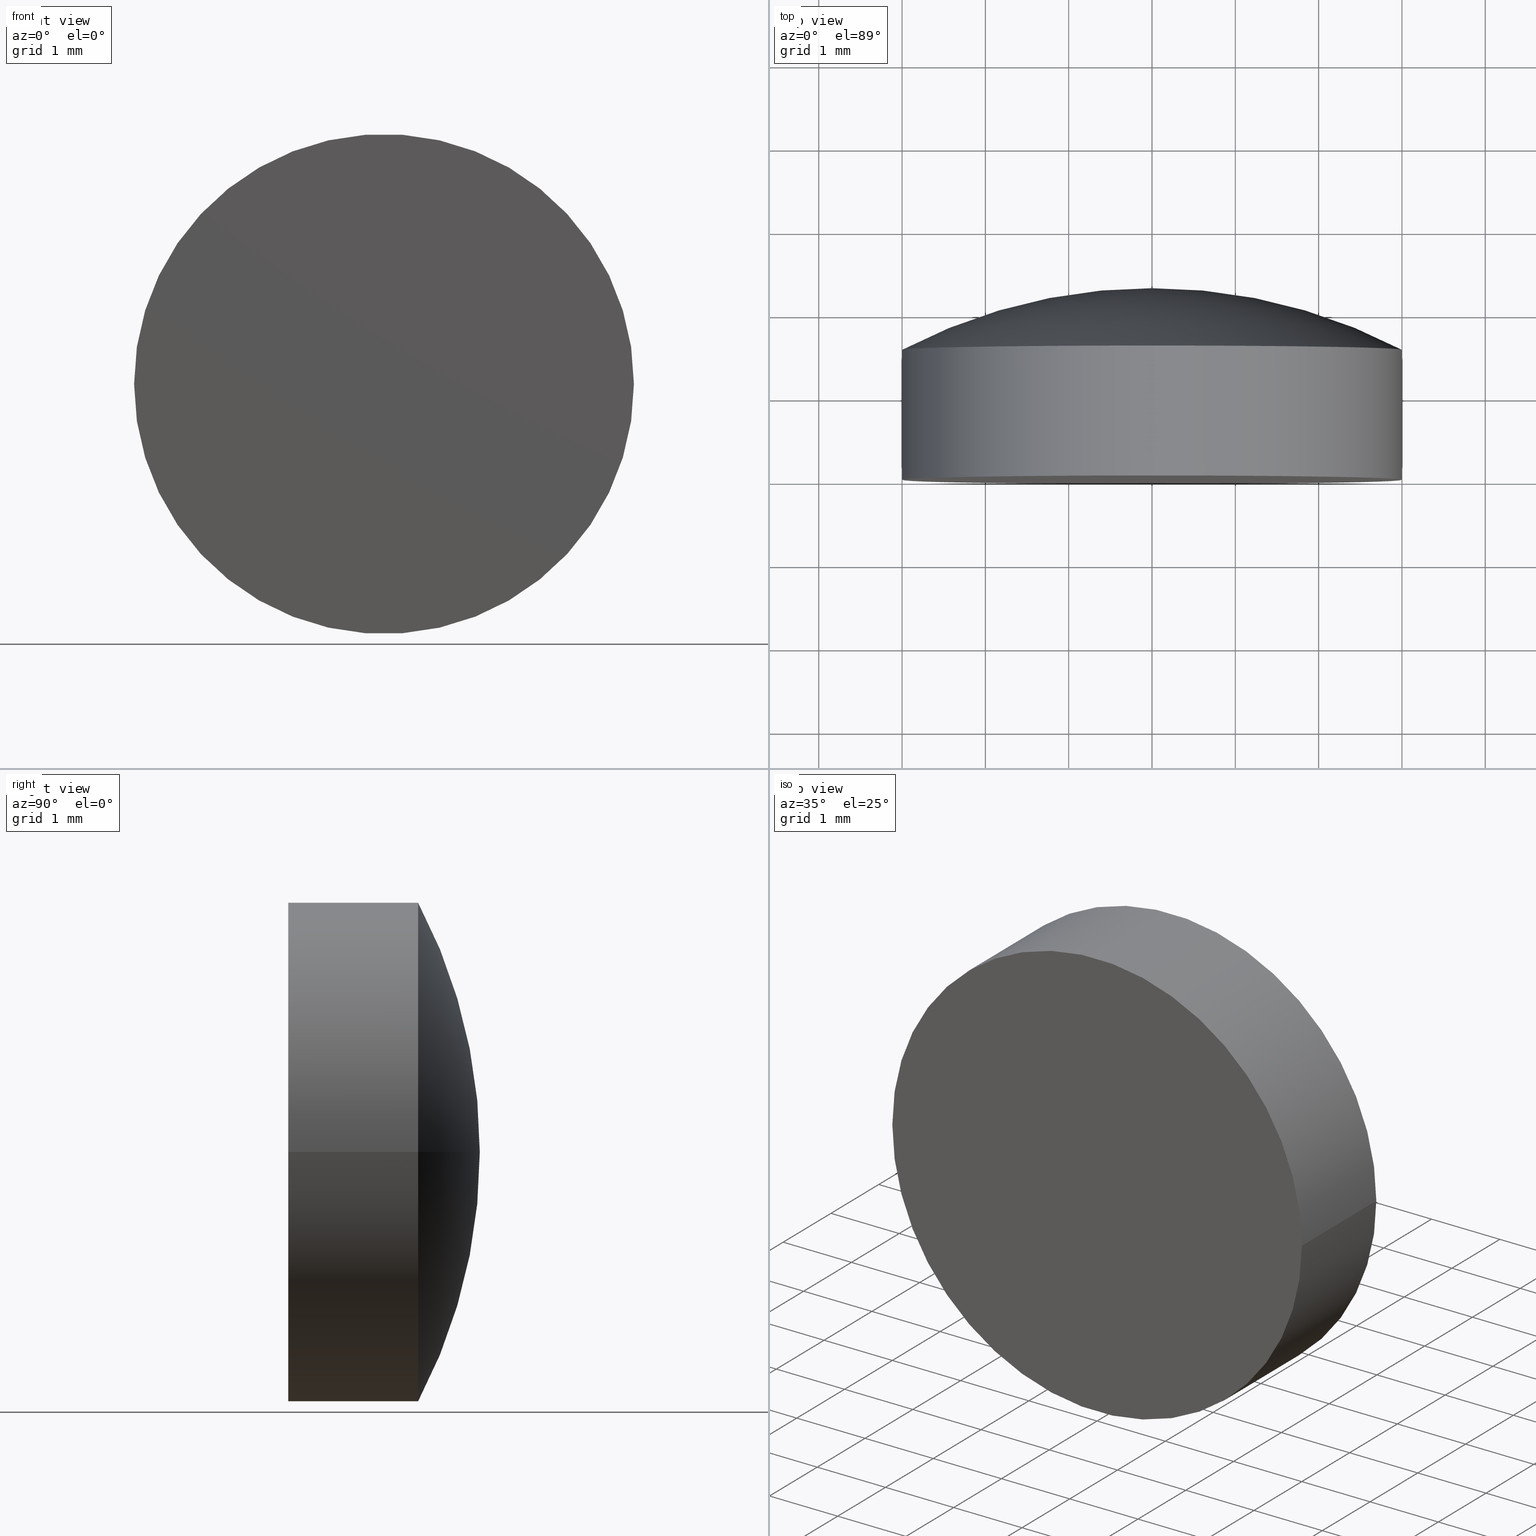
[diagram: canonical four-view strip — front | top / right | iso, engineering-drawing reading convention]
A machine part, canonical four-view strip (front | top / right | iso — engineering-drawing reading convention). The complete STEP part file that produces these views, byte-faithful:
ISO-10303-21;
HEADER;
FILE_DESCRIPTION (( 'STEP AP203' ),
    '1' );
FILE_NAME ('100561.STEP',
    '2024-05-09T05:39:09',
    ( '' ),
    ( '' ),
    'SwSTEP 2.0',
    'SolidWorks 2020',
    '' );
FILE_SCHEMA (( 'CONFIG_CONTROL_DESIGN' ));
ENDSEC;

DATA;
#1 = PERSON_AND_ORGANIZATION_ROLE ( 'design_owner' ) ;
#2 = CC_DESIGN_PERSON_AND_ORGANIZATION_ASSIGNMENT ( #32, #1, ( #84 ) ) ;
#3 = ORIENTED_EDGE ( 'NONE', *, *, #39, .F. ) ;
#4 = CARTESIAN_POINT ( 'NONE',  ( -3.000000000000000000, -4.792096170576599372E-17, 0.000000000000000000 ) ) ;
#5 = CARTESIAN_POINT ( 'NONE',  ( -2.491890008699830848E-17, 1.559999999999999609, 0.000000000000000000 ) ) ;
#6 = DIRECTION ( 'NONE',  ( 0.000000000000000000, -0.000000000000000000, -1.000000000000000000 ) ) ;
#7 = PERSON_AND_ORGANIZATION ( #11, #135 ) ;
#8 =( GEOMETRIC_REPRESENTATION_CONTEXT ( 3 ) GLOBAL_UNCERTAINTY_ASSIGNED_CONTEXT ( ( #48 ) ) GLOBAL_UNIT_ASSIGNED_CONTEXT ( ( #165, #191, #164 ) ) REPRESENTATION_CONTEXT ( 'NONE', 'WORKASPACE' ) );
#9 = DATE_TIME_ROLE ( 'creation_date' ) ;
#10 = CIRCLE ( 'NONE', #59, 3.000000000000000000 ) ;
#11 = PERSON ( 'δָ��', 'δָ��', 'δָ��', ('δָ��'), ('δָ��'), ('δָ��') ) ;
#12 = DIRECTION ( 'NONE',  ( -1.597365390192199380E-17, 1.000000000000000000, -0.000000000000000000 ) ) ;
#13 = TOROIDAL_SURFACE ( 'NONE', #97, -0.002199907603218680379, 6.459999999999999076 ) ;
#14 = SECURITY_CLASSIFICATION ( '', '', #118 ) ;
#15 = DIRECTION ( 'NONE',  ( -1.597365390192199380E-17, 1.000000000000000000, -0.000000000000000000 ) ) ;
#16 = APPLICATION_CONTEXT ( 'configuration controlled 3d designs of mechanical parts and assemblies' ) ;
#17 = ORIENTED_EDGE ( 'NONE', *, *, #150, .T. ) ;
#18 = PLANE ( 'NONE',  #114 ) ;
#19 = APPLICATION_PROTOCOL_DEFINITION ( 'international standard', 'config_control_design', 1994, #16 ) ;
#20 = CARTESIAN_POINT ( 'NONE',  ( 6.649208635946257662E-17, -4.159999625418450364, 0.000000000000000000 ) ) ;
#21 = CIRCLE ( 'NONE', #78, 6.459999999999999076 ) ;
#22 = CC_DESIGN_SECURITY_CLASSIFICATION ( #14, ( #100 ) ) ;
#23 = APPROVAL_ROLE ( '' ) ;
#24 = COORDINATED_UNIVERSAL_TIME_OFFSET ( 8, 0, .AHEAD. ) ;
#25 = CIRCLE ( 'NONE', #50, 3.000000000000000000 ) ;
#26 = APPLICATION_CONTEXT ( 'configuration controlled 3d designs of mechanical parts and assemblies' ) ;
#27 = DIRECTION ( 'NONE',  ( -1.597365390192199688E-17, 1.000000000000000000, -0.000000000000000000 ) ) ;
#28 = APPROVAL_DATE_TIME ( #65, #140 ) ;
#29 = FACE_OUTER_BOUND ( 'NONE', #171, .T. ) ;
#30 = PRODUCT_RELATED_PRODUCT_CATEGORY ( 'detail', '', ( #84 ) ) ;
#31 = CC_DESIGN_APPROVAL ( #126, ( #100 ) ) ;
#32 = PERSON_AND_ORGANIZATION ( #11, #135 ) ;
#33 = ORIENTED_EDGE ( 'NONE', *, *, #162, .T. ) ;
#34 = DIRECTION ( 'NONE',  ( 1.597365390192199380E-17, -1.000000000000000000, 0.000000000000000000 ) ) ;
#35 = CARTESIAN_POINT ( 'NONE',  ( -0.002199907603218613592, -4.159999625418450364, -2.694109804701682205E-19 ) ) ;
#36 = CARTESIAN_POINT ( 'NONE',  ( -2.491890008699830848E-17, 1.559999999999999609, 0.000000000000000000 ) ) ;
#37 = PERSON_AND_ORGANIZATION ( #11, #135 ) ;
#38 = DATE_AND_TIME ( #179, #124 ) ;
#39 = EDGE_CURVE ( 'NONE', #183, #87, #10, .T. ) ;
#40 = VECTOR ( 'NONE', #15, 1000.000000000000000 ) ;
#41 = CIRCLE ( 'NONE', #161, 6.459999999999999076 ) ;
#42 = LOCAL_TIME ( 13, 39, 9.000000000000000000, #129 ) ;
#43 = CYLINDRICAL_SURFACE ( 'NONE', #138, 3.000000000000000000 ) ;
#44 = VERTEX_POINT ( 'NONE', #91 ) ;
#45 = PRODUCT_DEFINITION_SHAPE ( 'NONE', 'NONE',  #180 ) ;
#46 = EDGE_CURVE ( 'NONE', #183, #44, #21, .T. ) ;
#47 = LINE ( 'NONE', #98, #40 ) ;
#48 = UNCERTAINTY_MEASURE_WITH_UNIT (LENGTH_MEASURE( 1.000000000000000082E-05 ), #165, 'distance_accuracy_value', 'NONE');
#49 = APPROVAL_DATE_TIME ( #104, #189 ) ;
#50 = AXIS2_PLACEMENT_3D ( 'NONE', #5, #53, #102 ) ;
#51 = PERSON_AND_ORGANIZATION ( #11, #135 ) ;
#52 = ORIENTED_EDGE ( 'NONE', *, *, #69, .T. ) ;
#53 = DIRECTION ( 'NONE',  ( -1.597365390192199688E-17, 1.000000000000000000, -0.000000000000000000 ) ) ;
#54 = DIRECTION ( 'NONE',  ( -1.224646799147353207E-16, -1.956208412167640239E-33, 1.000000000000000000 ) ) ;
#55 = ORIENTED_EDGE ( 'NONE', *, *, #85, .T. ) ;
#56 = ADVANCED_FACE ( 'NONE', ( #133 ), #192, .T. ) ;
#57 = PERSON_AND_ORGANIZATION ( #11, #135 ) ;
#58 = COORDINATED_UNIVERSAL_TIME_OFFSET ( 8, 0, .AHEAD. ) ;
#59 = AXIS2_PLACEMENT_3D ( 'NONE', #36, #177, #106 ) ;
#60 = DIRECTION ( 'NONE',  ( -1.000000000000000000, 0.000000000000000000, 0.000000000000000000 ) ) ;
#61 = MANIFOLD_SOLID_BREP ( '��ת1', #122 ) ;
#62 = ORIENTED_EDGE ( 'NONE', *, *, #150, .F. ) ;
#63 = AXIS2_PLACEMENT_3D ( 'NONE', #20, #88, #132 ) ;
#64 = CC_DESIGN_PERSON_AND_ORGANIZATION_ASSIGNMENT ( #7, #137, ( #100 ) ) ;
#65 = DATE_AND_TIME ( #68, #201 ) ;
#66 = CARTESIAN_POINT ( 'NONE',  ( 3.000000000000000000, 1.559999999999999831, 3.673940397442059375E-16 ) ) ;
#67 = APPROVAL_PERSON_ORGANIZATION ( #37, #140, #23 ) ;
#68 = CALENDAR_DATE ( 2024, 9, 5 ) ;
#69 = EDGE_CURVE ( 'NONE', #72, #87, #182, .T. ) ;
#70 = APPROVAL_ROLE ( '' ) ;
#71 = APPROVAL_STATUS ( 'not_yet_approved' ) ;
#72 = VERTEX_POINT ( 'NONE', #110 ) ;
#73 = CIRCLE ( 'NONE', #127, 3.000000000000000000 ) ;
#74 = CARTESIAN_POINT ( 'NONE',  ( -3.000000000000000000, 1.559999999999999831, 0.000000000000000000 ) ) ;
#75 = DIRECTION ( 'NONE',  ( -1.000000000000000000, 0.000000000000000000, 0.000000000000000000 ) ) ;
#76 = PERSON_AND_ORGANIZATION ( #11, #135 ) ;
#77 = CALENDAR_DATE ( 2024, 9, 5 ) ;
#78 = AXIS2_PLACEMENT_3D ( 'NONE', #151, #6, #75 ) ;
#79 = CARTESIAN_POINT ( 'NONE',  ( -3.673940397442058882E-17, 2.299999999999999822, 0.000000000000000000 ) ) ;
#80 = ORIENTED_EDGE ( 'NONE', *, *, #162, .F. ) ;
#81 = ADVANCED_FACE ( 'NONE', ( #139 ), #43, .T. ) ;
#82 = APPROVAL_PERSON_ORGANIZATION ( #173, #189, #70 ) ;
#83 = CARTESIAN_POINT ( 'NONE',  ( 0.000000000000000000, 0.000000000000000000, 0.000000000000000000 ) ) ;
#84 = PRODUCT ( '100561', '100561', '', ( #89 ) ) ;
#85 = EDGE_CURVE ( 'NONE', #197, #72, #73, .T. ) ;
#86 = CARTESIAN_POINT ( 'NONE',  ( 0.000000000000000000, 0.000000000000000000, 0.000000000000000000 ) ) ;
#87 = VERTEX_POINT ( 'NONE', #66 ) ;
#88 = DIRECTION ( 'NONE',  ( -1.597365390192199688E-17, 1.000000000000000000, -0.000000000000000000 ) ) ;
#89 = MECHANICAL_CONTEXT ( 'NONE', #16, 'mechanical' ) ;
#90 = CARTESIAN_POINT ( 'NONE',  ( -3.827364284675817636E-34, 2.396048085288299686E-17, 0.000000000000000000 ) ) ;
#91 = CARTESIAN_POINT ( 'NONE',  ( -3.673940397442058882E-17, 2.299999999999999822, 0.000000000000000000 ) ) ;
#92 = COORDINATED_UNIVERSAL_TIME_OFFSET ( 8, 0, .AHEAD. ) ;
#93 = PERSON_AND_ORGANIZATION ( #11, #135 ) ;
#94 = ADVANCED_FACE ( 'NONE', ( #29 ), #13, .T. ) ;
#95 = ORIENTED_EDGE ( 'NONE', *, *, #39, .T. ) ;
#96 = CARTESIAN_POINT ( 'NONE',  ( 3.000000000000000000, 2.299999999999999822, 3.673940397442059868E-16 ) ) ;
#97 = AXIS2_PLACEMENT_3D ( 'NONE', #184, #200, #160 ) ;
#98 = CARTESIAN_POINT ( 'NONE',  ( -3.000000000000000000, 2.299999999999999822, 0.000000000000000000 ) ) ;
#99 = DESIGN_CONTEXT ( 'detailed design', #26, 'design' ) ;
#100 = PRODUCT_DEFINITION_FORMATION_WITH_SPECIFIED_SOURCE ( '�κ�', '', #84, .NOT_KNOWN. ) ;
#101 = ORIENTED_EDGE ( 'NONE', *, *, #143, .T. ) ;
#102 = DIRECTION ( 'NONE',  ( -1.000000000000000000, 0.000000000000000000, 0.000000000000000000 ) ) ;
#103 = CC_DESIGN_DATE_AND_TIME_ASSIGNMENT ( #193, #9, ( #180 ) ) ;
#104 = DATE_AND_TIME ( #187, #42 ) ;
#105 = VECTOR ( 'NONE', #12, 1000.000000000000000 ) ;
#106 = DIRECTION ( 'NONE',  ( -1.000000000000000000, 0.000000000000000000, 0.000000000000000000 ) ) ;
#107 = DATE_TIME_ROLE ( 'classification_date' ) ;
#108 = APPROVAL_STATUS ( 'not_yet_approved' ) ;
#109 = APPROVAL_PERSON_ORGANIZATION ( #57, #126, #194 ) ;
#110 = CARTESIAN_POINT ( 'NONE',  ( 3.000000000000000000, 4.792096170576599372E-17, 3.673940397442059868E-16 ) ) ;
#111 = EDGE_LOOP ( 'NONE', ( #95, #33, #163 ) ) ;
#112 = DIRECTION ( 'NONE',  ( -1.597365390192199688E-17, 1.000000000000000000, -0.000000000000000000 ) ) ;
#113 = AXIS2_PLACEMENT_3D ( 'NONE', #123, #27, #158 ) ;
#114 = AXIS2_PLACEMENT_3D ( 'NONE', #90, #34, #149 ) ;
#115 = ORIENTED_EDGE ( 'NONE', *, *, #120, .F. ) ;
#116 = FACE_OUTER_BOUND ( 'NONE', #147, .T. ) ;
#117 = EDGE_LOOP ( 'NONE', ( #55, #52, #3, #115 ) ) ;
#118 = SECURITY_CLASSIFICATION_LEVEL ( 'unclassified' ) ;
#119 = CC_DESIGN_APPROVAL ( #140, ( #14 ) ) ;
#120 = EDGE_CURVE ( 'NONE', #197, #183, #47, .T. ) ;
#121 = PERSON_AND_ORGANIZATION_ROLE ( 'classification_officer' ) ;
#122 = CLOSED_SHELL ( 'NONE', ( #81, #155, #94, #156, #56 ) ) ;
#123 = CARTESIAN_POINT ( 'NONE',  ( -3.673940397442058882E-17, 2.299999999999999822, 0.000000000000000000 ) ) ;
#124 = LOCAL_TIME ( 13, 39, 9.000000000000000000, #58 ) ;
#125 = CC_DESIGN_PERSON_AND_ORGANIZATION_ASSIGNMENT ( #76, #121, ( #14 ) ) ;
#126 = APPROVAL ( #108, 'δָ��' ) ;
#127 = AXIS2_PLACEMENT_3D ( 'NONE', #170, #112, #172 ) ;
#128 = APPLICATION_PROTOCOL_DEFINITION ( 'international standard', 'config_control_design', 1994, #26 ) ;
#129 = COORDINATED_UNIVERSAL_TIME_OFFSET ( 8, 0, .AHEAD. ) ;
#130 = LOCAL_TIME ( 13, 39, 9.000000000000000000, #154 ) ;
#131 = ORIENTED_EDGE ( 'NONE', *, *, #120, .T. ) ;
#132 = DIRECTION ( 'NONE',  ( -1.000000000000000000, -1.597365390192199688E-17, 0.000000000000000000 ) ) ;
#133 = FACE_OUTER_BOUND ( 'NONE', #174, .T. ) ;
#134 = CALENDAR_DATE ( 2024, 9, 5 ) ;
#135 = ORGANIZATION ( 'δָ��', 'δָ��', '' ) ;
#136 = PERSON_AND_ORGANIZATION_ROLE ( 'creator' ) ;
#137 = PERSON_AND_ORGANIZATION_ROLE ( 'creator' ) ;
#138 = AXIS2_PLACEMENT_3D ( 'NONE', #79, #196, #60 ) ;
#139 = FACE_OUTER_BOUND ( 'NONE', #117, .T. ) ;
#140 = APPROVAL ( #167, 'δָ��' ) ;
#141 = ORIENTED_EDGE ( 'NONE', *, *, #69, .F. ) ;
#142 = TOROIDAL_SURFACE ( 'NONE', #63, -0.002199907603218680379, 6.459999999999999076 ) ;
#143 = EDGE_CURVE ( 'NONE', #72, #197, #159, .T. ) ;
#144 = DIRECTION ( 'NONE',  ( -1.597365390192199688E-17, 1.000000000000000000, -0.000000000000000000 ) ) ;
#145 = SHAPE_DEFINITION_REPRESENTATION ( #45, #195 ) ;
#146 = DIRECTION ( 'NONE',  ( 0.000000000000000000, 0.000000000000000000, 1.000000000000000000 ) ) ;
#147 = EDGE_LOOP ( 'NONE', ( #166, #157 ) ) ;
#148 = DIRECTION ( 'NONE',  ( 1.000000000000000000, 0.000000000000000000, 1.224646799147352961E-16 ) ) ;
#149 = DIRECTION ( 'NONE',  ( 1.000000000000000000, 1.597365390192199380E-17, 0.000000000000000000 ) ) ;
#150 = EDGE_CURVE ( 'NONE', #87, #183, #25, .T. ) ;
#151 = CARTESIAN_POINT ( 'NONE',  ( 0.002199907603218746732, -4.159999625418450364, 0.000000000000000000 ) ) ;
#152 = PERSON_AND_ORGANIZATION_ROLE ( 'design_supplier' ) ;
#153 = AXIS2_PLACEMENT_3D ( 'NONE', #83, #144, #190 ) ;
#154 = COORDINATED_UNIVERSAL_TIME_OFFSET ( 8, 0, .AHEAD. ) ;
#155 = ADVANCED_FACE ( 'NONE', ( #175 ), #142, .T. ) ;
#156 = ADVANCED_FACE ( 'NONE', ( #116 ), #18, .T. ) ;
#157 = ORIENTED_EDGE ( 'NONE', *, *, #143, .F. ) ;
#158 = DIRECTION ( 'NONE',  ( -1.000000000000000000, 0.000000000000000000, 0.000000000000000000 ) ) ;
#159 = CIRCLE ( 'NONE', #153, 3.000000000000000000 ) ;
#160 = DIRECTION ( 'NONE',  ( -1.000000000000000000, -1.597365390192199688E-17, 0.000000000000000000 ) ) ;
#161 = AXIS2_PLACEMENT_3D ( 'NONE', #35, #54, #148 ) ;
#162 = EDGE_CURVE ( 'NONE', #87, #44, #41, .T. ) ;
#163 = ORIENTED_EDGE ( 'NONE', *, *, #46, .F. ) ;
#164 =( NAMED_UNIT ( * ) SI_UNIT ( $, .STERADIAN. ) SOLID_ANGLE_UNIT ( ) );
#165 =( LENGTH_UNIT ( ) NAMED_UNIT ( * ) SI_UNIT ( .MILLI., .METRE. ) );
#166 = ORIENTED_EDGE ( 'NONE', *, *, #85, .F. ) ;
#167 = APPROVAL_STATUS ( 'not_yet_approved' ) ;
#168 = APPROVAL_DATE_TIME ( #38, #126 ) ;
#169 = CC_DESIGN_PERSON_AND_ORGANIZATION_ASSIGNMENT ( #51, #136, ( #180 ) ) ;
#170 = CARTESIAN_POINT ( 'NONE',  ( 0.000000000000000000, 0.000000000000000000, 0.000000000000000000 ) ) ;
#171 = EDGE_LOOP ( 'NONE', ( #80, #17, #188 ) ) ;
#172 = DIRECTION ( 'NONE',  ( -1.000000000000000000, -1.597365390192199688E-17, 0.000000000000000000 ) ) ;
#173 = PERSON_AND_ORGANIZATION ( #11, #135 ) ;
#174 = EDGE_LOOP ( 'NONE', ( #141, #101, #131, #62 ) ) ;
#175 = FACE_OUTER_BOUND ( 'NONE', #111, .T. ) ;
#176 = CC_DESIGN_DATE_AND_TIME_ASSIGNMENT ( #178, #107, ( #14 ) ) ;
#177 = DIRECTION ( 'NONE',  ( -1.597365390192199688E-17, 1.000000000000000000, -0.000000000000000000 ) ) ;
#178 = DATE_AND_TIME ( #134, #130 ) ;
#179 = CALENDAR_DATE ( 2024, 9, 5 ) ;
#180 = PRODUCT_DEFINITION ( 'δ֪', '', #100, #99 ) ;
#181 = LOCAL_TIME ( 13, 39, 9.000000000000000000, #24 ) ;
#182 = LINE ( 'NONE', #96, #105 ) ;
#183 = VERTEX_POINT ( 'NONE', #74 ) ;
#184 = CARTESIAN_POINT ( 'NONE',  ( 6.649208635946257662E-17, -4.159999625418450364, 0.000000000000000000 ) ) ;
#185 = DIRECTION ( 'NONE',  ( 1.000000000000000000, 0.000000000000000000, 0.000000000000000000 ) ) ;
#186 = CC_DESIGN_APPROVAL ( #189, ( #180 ) ) ;
#187 = CALENDAR_DATE ( 2024, 9, 5 ) ;
#188 = ORIENTED_EDGE ( 'NONE', *, *, #46, .T. ) ;
#189 = APPROVAL ( #71, 'δָ��' ) ;
#190 = DIRECTION ( 'NONE',  ( -1.000000000000000000, -1.597365390192199688E-17, 0.000000000000000000 ) ) ;
#191 =( NAMED_UNIT ( * ) PLANE_ANGLE_UNIT ( ) SI_UNIT ( $, .RADIAN. ) );
#192 = CYLINDRICAL_SURFACE ( 'NONE', #113, 3.000000000000000000 ) ;
#193 = DATE_AND_TIME ( #77, #181 ) ;
#194 = APPROVAL_ROLE ( '' ) ;
#195 = ADVANCED_BREP_SHAPE_REPRESENTATION ( '100561', ( #61, #198 ), #8 ) ;
#196 = DIRECTION ( 'NONE',  ( -1.597365390192199688E-17, 1.000000000000000000, -0.000000000000000000 ) ) ;
#197 = VERTEX_POINT ( 'NONE', #4 ) ;
#198 = AXIS2_PLACEMENT_3D ( 'NONE', #86, #146, #185 ) ;
#199 = CC_DESIGN_PERSON_AND_ORGANIZATION_ASSIGNMENT ( #93, #152, ( #100 ) ) ;
#200 = DIRECTION ( 'NONE',  ( -1.597365390192199688E-17, 1.000000000000000000, -0.000000000000000000 ) ) ;
#201 = LOCAL_TIME ( 13, 39, 9.000000000000000000, #92 ) ;
ENDSEC;
END-ISO-10303-21;
